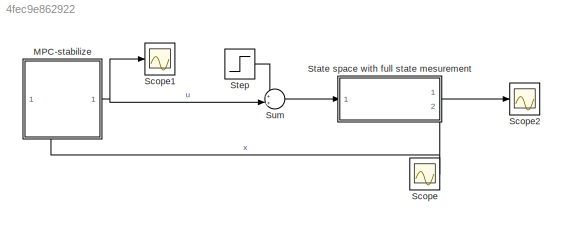
MODEL slx_4fec9e862922
KIND model
CONFIG AbsTol = auto
CONFIG EnableMultiTasking = off
CONFIG FixedStep = auto
CONFIG InitFcn = run('MPC_Stabilization_Init.m')
CONFIG MaxStep = auto
CONFIG MinStep = auto
CONFIG PreLoadFcn = run('MPC_Stabilization_Init.m')
CONFIG RelTol = 1e-3
CONFIG SampleTimeConstraint = Unconstrained
CONFIG SolverName = VariableStepAuto
CONFIG StartTime = 0.0
CONFIG StopTime = 40
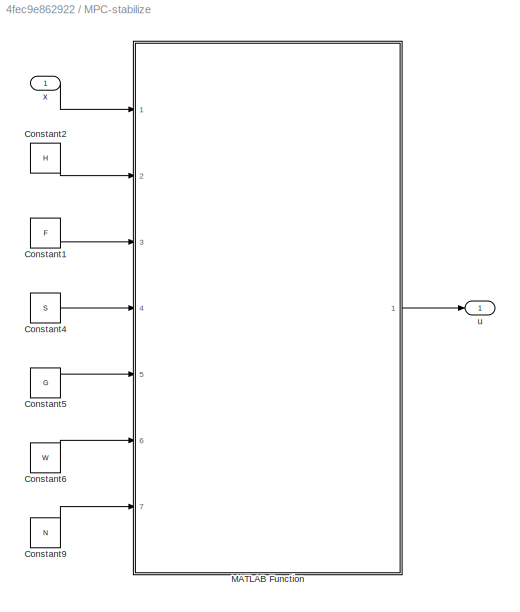
BLOCK [SubSystem] MPC-stabilize
  Ports = [1, 1]
  RequestExecContextInheritance = off
  StopFcn = MPC_Stabilization_Init
BLOCK [Constant] MPC-stabilize/Constant1
  Value = F
BLOCK [Constant] MPC-stabilize/Constant2
  Value = H
BLOCK [Constant] MPC-stabilize/Constant4
  Value = S
BLOCK [Constant] MPC-stabilize/Constant5
  Value = G
BLOCK [Constant] MPC-stabilize/Constant6
  Value = W
BLOCK [Constant] MPC-stabilize/Constant9
  Value = N
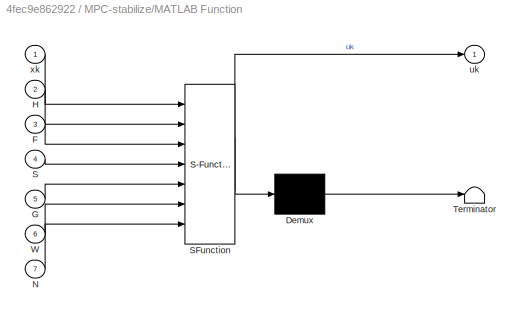
BLOCK [SubSystem] MPC-stabilize/MATLAB Function
  ErrorFcn = Stateflow.Translate.translate
  PermitHierarchicalResolution = ExplicitOnly
  Ports = [7, 1]
  RequestExecContextInheritance = off
  SFBlockType = MATLAB Function
  TreatAsAtomicUnit = on
BLOCK [Demux] MPC-stabilize/MATLAB Function/ Demux 
  Outputs = 1
  Ports = [1, 1]
BLOCK [S-Function] MPC-stabilize/MATLAB Function/ SFunction 
  EnableBusSupport = on
  FunctionName = sf_sfun
  PortCounts = [7 2]
  Ports = [7, 2]
  SFcnIsStateOwnerBlock = off
  SFunctionDeploymentMode = off
  Tag = Stateflow S-Function 1
BLOCK [Terminator] MPC-stabilize/MATLAB Function/ Terminator 
BLOCK [Inport] MPC-stabilize/MATLAB Function/F
  Port = 3
BLOCK [Inport] MPC-stabilize/MATLAB Function/G
  Port = 5
BLOCK [Inport] MPC-stabilize/MATLAB Function/H
  Port = 2
BLOCK [Inport] MPC-stabilize/MATLAB Function/N
  Port = 7
BLOCK [Inport] MPC-stabilize/MATLAB Function/S
  Port = 4
BLOCK [Inport] MPC-stabilize/MATLAB Function/W
  Port = 6
BLOCK [Outport] MPC-stabilize/MATLAB Function/uk
  VectorParamsAs1DForOutWhenUnconnected = off
BLOCK [Inport] MPC-stabilize/MATLAB Function/xk
BLOCK [Outport] MPC-stabilize/u
  VectorParamsAs1DForOutWhenUnconnected = off
BLOCK [Inport] MPC-stabilize/x
BLOCK [Scope] Scope
  Floating = off
  NumInputPorts = 1
  Ports = [1]
  ScopeSpecificationString = Simulink.scopes.TimeScopeBlockCfg('CurrentConfiguration', extmgr.ConfigurationSet(extmgr.Configuration('Core','General UI',true),extmgr.Configuration('Core','Source UI',true),extmgr.Configuration('Sources','WiredSimulink',true),extmgr.Configuration('Visuals','Time Domain',true,'SerializedDisplays',{struct('MinYLimReal','-6.82773','MaxYLimReal','11.44956','YLabelReal','','MinYLimMag','0.00000','Max...<+1404ch>
BLOCK [Scope] Scope1
  Floating = off
  NumInputPorts = 1
  Ports = [1]
  ScopeSpecificationString = Simulink.scopes.TimeScopeBlockCfg('CurrentConfiguration', extmgr.ConfigurationSet(extmgr.Configuration('Core','General UI',true),extmgr.Configuration('Core','Source UI',true),extmgr.Configuration('Sources','WiredSimulink',true,'DataLoggingVariableName','ScopeData1'),extmgr.Configuration('Visuals','Time Domain',true,'SerializedDisplays',{struct('MinYLimReal','-4.56573','MaxYLimReal','1.09155','YLab...<+1412ch>
BLOCK [Scope] Scope2
  Floating = off
  NumInputPorts = 1
  Ports = [1]
  ScopeSpecificationString = Simulink.scopes.TimeScopeBlockCfg('CurrentConfiguration', extmgr.ConfigurationSet(extmgr.Configuration('Core','General UI',true),extmgr.Configuration('Core','Source UI',true),extmgr.Configuration('Sources','WiredSimulink',true,'DataLoggingVariableName','ScopeData1'),extmgr.Configuration('Visuals','Time Domain',true,'SerializedDisplays',{struct('MinYLimReal','-0.75116','MaxYLimReal','6.36524','YLab...<+1470ch>
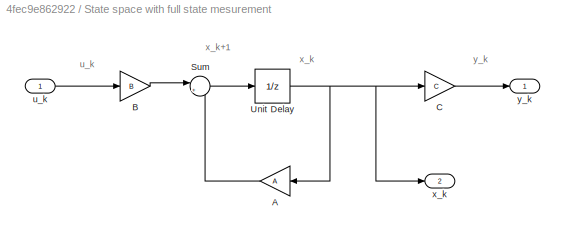
BLOCK [SubSystem] State space with full state mesurement
  PortSchema = {"entries":[{"content":{"sides":[{"content":{"connectorIds":["In1"]},"type":"ConnectorPlacement.EquallySpacedRectSide","uuid":"af8233aa-8abb-4886-bf43-cd1df4b87fab"},{"content":{"connectorIds":["Out1"],"side":"RIGHT"},"type":"ConnectorPlacement.EquallySpacedRectSide","uuid":"f0184c17-054b-49be-872c-09bd334a5600"},{"content":{"connectorIds":[],"side":"TOP"},"type":"ConnectorPlacement.EquallySpacedR...<+534ch>
  Ports = [1, 2]
  RequestExecContextInheritance = off
BLOCK [Gain] State space with full state mesurement/A
  Gain = A
  Multiplication = Matrix(K*u)
  NameLocation = top
BLOCK [Gain] State space with full state mesurement/B
  Gain = B
  Multiplication = Matrix(K*u)
BLOCK [Gain] State space with full state mesurement/C
  Gain = C
  Multiplication = Matrix(K*u)
BLOCK [Sum] State space with full state mesurement/Sum
  Inputs = |++
  Ports = [2, 1]
BLOCK [UnitDelay] State space with full state mesurement/Unit Delay
  HasFrameUpgradeWarning = on
  InitialCondition = x_0
  SampleTime = Ts
BLOCK [Inport] State space with full state mesurement/u_k
BLOCK [Outport] State space with full state mesurement/x_k
  Port = 2
  VectorParamsAs1DForOutWhenUnconnected = off
BLOCK [Outport] State space with full state mesurement/y_k
  VectorParamsAs1DForOutWhenUnconnected = off
BLOCK [Step] Step
  After = 2
  Commented = on
  SampleTime = 0
  Time = 20
BLOCK [Sum] Sum
  Inputs = ++|
  Ports = [2, 1]
ANNOTATION State space with full state mesurement: u_k
ANNOTATION State space with full state mesurement: x_k
ANNOTATION State space with full state mesurement: x_k+1
ANNOTATION State space with full state mesurement: y_k
LINE MPC-stabilize/Constant1:1 -> MPC-stabilize/MATLAB Function:3
LINE MPC-stabilize/Constant2:1 -> MPC-stabilize/MATLAB Function:2
LINE MPC-stabilize/Constant4:1 -> MPC-stabilize/MATLAB Function:4
LINE MPC-stabilize/Constant5:1 -> MPC-stabilize/MATLAB Function:5
LINE MPC-stabilize/Constant6:1 -> MPC-stabilize/MATLAB Function:6
LINE MPC-stabilize/Constant9:1 -> MPC-stabilize/MATLAB Function:7
LINE MPC-stabilize/MATLAB Function:1 -> MPC-stabilize/u:1
LINE MPC-stabilize/x:1 -> MPC-stabilize/MATLAB Function:1
NET MPC-stabilize:1 -> Scope1:1, Sum:2
LINE State space with full state mesurement/A:1 -> State space with full state mesurement/Sum:2
LINE State space with full state mesurement/B:1 -> State space with full state mesurement/Sum:1
LINE State space with full state mesurement/C:1 -> State space with full state mesurement/y_k:1
LINE State space with full state mesurement/Sum:1 -> State space with full state mesurement/Unit Delay:1
NET State space with full state mesurement/Unit Delay:1 -> State space with full state mesurement/A:1, State space with full state mesurement/C:1, State space with full state mesurement/x_k:1
LINE State space with full state mesurement/u_k:1 -> State space with full state mesurement/B:1
LINE State space with full state mesurement:1 -> Scope2:1
NET State space with full state mesurement:2 -> MPC-stabilize:1, Scope:1
LINE Step:1 -> Sum:1
LINE Sum:1 -> State space with full state mesurement:1
note: NET lines group one-source signal fan-out (src -> all destinations, sorted); 1:1 wires keep LINE
CHART MPC-stabilize/MATLAB Function states=1 transitions=1
  STATE_LABEL 'eML_blk_kernel()'
  STATE_LABEL "SCRIPT:\nfunction uk = MPC_Stabilisation(xk,H,F,S,G,W,N)\n\n    %m =\n\n    coder.extrinsic('optimoptions');\n    coder.extrinsic('try');\n    options = optimoptions('quadprog');\n    options = optimoptions(options, 'Display', 'off');\n    coder.extrinsic('quadprog');\n    \n    %Z = zeros(  );\n\n    % sol = quadprog(,  ,  ,  , [], [], [], [], [], options);  \n    \n    if ~isempty(sol)\n        Z = sol;\n    els...<+113ch>"
CHART  states=0 transitions=0
